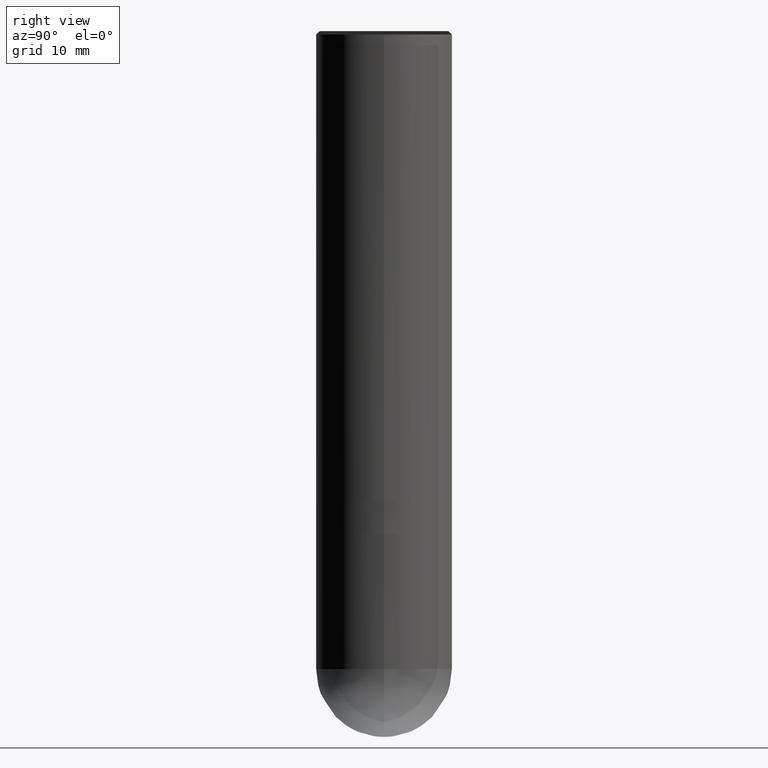
[diagram: clean part render]
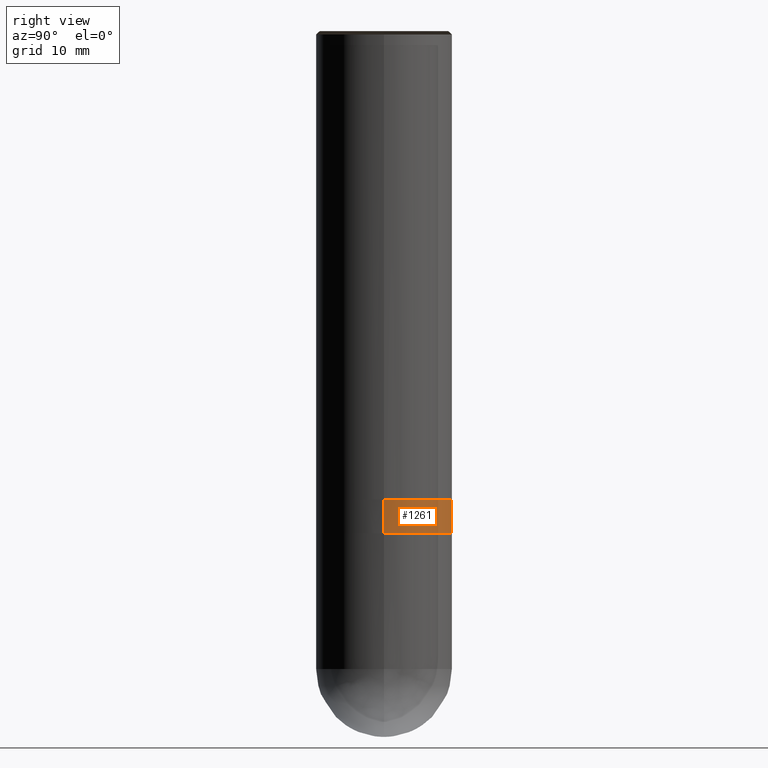
[diagram: same view with one face highlighted and labeled with its STEP entity id]
A machine part, right view. The second image highlights one B-rep face of the part: STEP entity #1261.
In plain terms, the highlighted face is a freeform B-spline surface patch.
Its self-contained STEP definition (entity closure, byte-faithful):
#1071=CARTESIAN_POINT('',(10.0,0.0,-5.0));
#1072=CARTESIAN_POINT('',(10.0,10.0,-5.0));
#1073=CARTESIAN_POINT('',(0.0,10.0,-5.0));
#1074=CARTESIAN_POINT('',(-10.0,10.0,-5.0));
#1075=CARTESIAN_POINT('',(-10.0,0.0,-5.0));
#1086=CARTESIAN_POINT('',(10.0,0.0,0.0));
#1087=CARTESIAN_POINT('',(10.0,10.0,0.0));
#1088=CARTESIAN_POINT('',(0.0,10.0,0.0));
#1089=CARTESIAN_POINT('',(-10.0,10.0,0.0));
#1090=CARTESIAN_POINT('',(-10.0,0.0,0.0));
#1242=(
BOUNDED_SURFACE()
B_SPLINE_SURFACE(1,2,(
(#1071,#1072,#1073,#1074,#1075),
(#1086,#1087,#1088,#1089,#1090)
), .UNSPECIFIED.,.F.,.F.,.F.)
B_SPLINE_SURFACE_WITH_KNOTS((2,2),(3,2,3),(
0.0,1.0),(
0.0,0.5,1.0), .UNSPECIFIED.)
GEOMETRIC_REPRESENTATION_ITEM()
RATIONAL_B_SPLINE_SURFACE(((1.0,0.707106781187,1.0,0.707106781187,1.0),
(1.0,0.707106781187,1.0,0.707106781187,1.0)
))
REPRESENTATION_ITEM('')
SURFACE()
);
#1243=(
BOUNDED_CURVE()
B_SPLINE_CURVE(2,(#1075,#1074,#1073,#1072,#1071),.UNSPECIFIED.,.F.,.F.)
B_SPLINE_CURVE_WITH_KNOTS((3,2,3),
(0.0,0.5,1.0),.UNSPECIFIED.)
CURVE()
GEOMETRIC_REPRESENTATION_ITEM()
RATIONAL_B_SPLINE_CURVE((1.0,0.707106781187,1.0,0.707106781187,1.0))
REPRESENTATION_ITEM('')
);
#1244=(
BOUNDED_CURVE()
B_SPLINE_CURVE(1,(#1071,#1086),.UNSPECIFIED.,.F.,.F.)
B_SPLINE_CURVE_WITH_KNOTS((2,2),
(0.0,1.0),.UNSPECIFIED.)
CURVE()
GEOMETRIC_REPRESENTATION_ITEM()
RATIONAL_B_SPLINE_CURVE((1.0,1.0))
REPRESENTATION_ITEM('')
);
#1245=(
BOUNDED_CURVE()
B_SPLINE_CURVE(2,(#1086,#1087,#1088,#1089,#1090),.UNSPECIFIED.,.F.,.F.)
B_SPLINE_CURVE_WITH_KNOTS((3,2,3),
(0.0,0.5,1.0),.UNSPECIFIED.)
CURVE()
GEOMETRIC_REPRESENTATION_ITEM()
RATIONAL_B_SPLINE_CURVE((1.0,0.707106781187,1.0,0.707106781187,1.0))
REPRESENTATION_ITEM('')
);
#1246=(
BOUNDED_CURVE()
B_SPLINE_CURVE(1,(#1090,#1075),.UNSPECIFIED.,.F.,.F.)
B_SPLINE_CURVE_WITH_KNOTS((2,2),
(0.0,1.0),.UNSPECIFIED.)
CURVE()
GEOMETRIC_REPRESENTATION_ITEM()
RATIONAL_B_SPLINE_CURVE((1.0,1.0))
REPRESENTATION_ITEM('')
);
#1247=VERTEX_POINT('',#1071);
#1248=VERTEX_POINT('',#1075);
#1249=VERTEX_POINT('',#1086);
#1250=VERTEX_POINT('',#1090);
#1251=EDGE_CURVE('',#1248,#1247,#1243,.T.);
#1252=EDGE_CURVE('',#1247,#1249,#1244,.T.);
#1253=EDGE_CURVE('',#1249,#1250,#1245,.T.);
#1254=EDGE_CURVE('',#1250,#1248,#1246,.T.);
#1255=ORIENTED_EDGE('',*,*,#1251,.T.);
#1256=ORIENTED_EDGE('',*,*,#1252,.T.);
#1257=ORIENTED_EDGE('',*,*,#1253,.T.);
#1258=ORIENTED_EDGE('',*,*,#1254,.T.);
#1259=EDGE_LOOP('',(#1255,#1256,#1257,#1258));
#1260=FACE_OUTER_BOUND('',#1259,.T.);
#1261=ADVANCED_FACE('',(#1260),#1242,.T.);